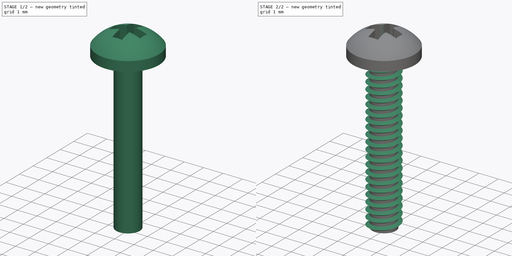
[diagram: build sequence overview — one tinted view per stage of 2, left to right]
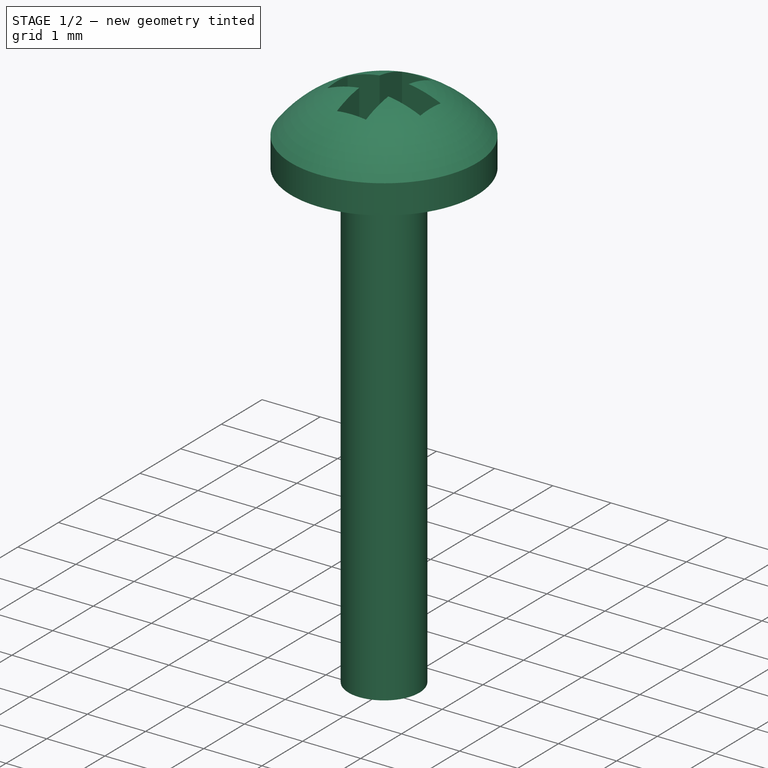
[diagram: stage 1 of 2 — iso view after this stage's code; geometry added in this stage tinted green]
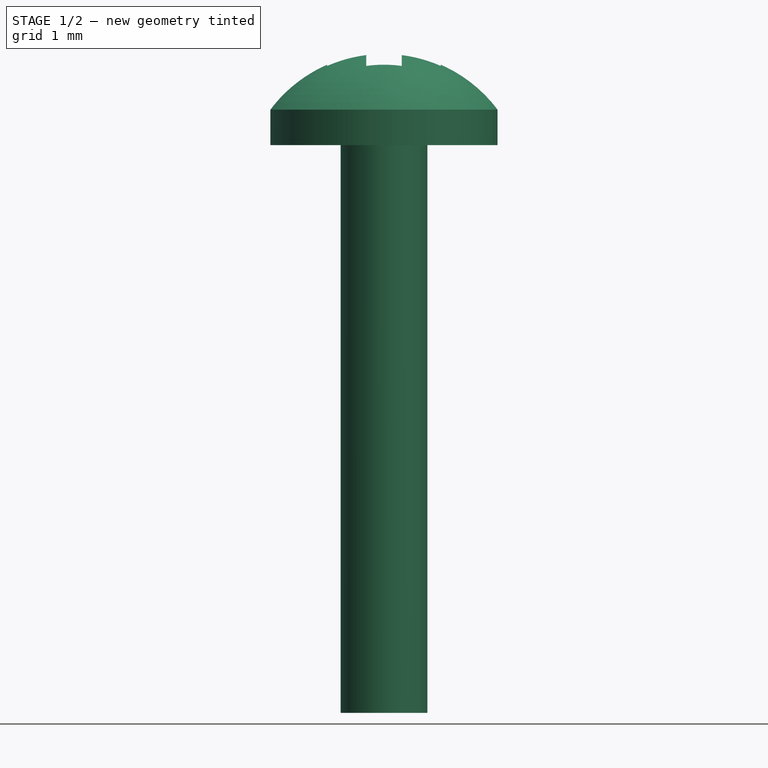
[diagram: stage 1 of 2 — front view after this stage's code; geometry added in this stage tinted green]
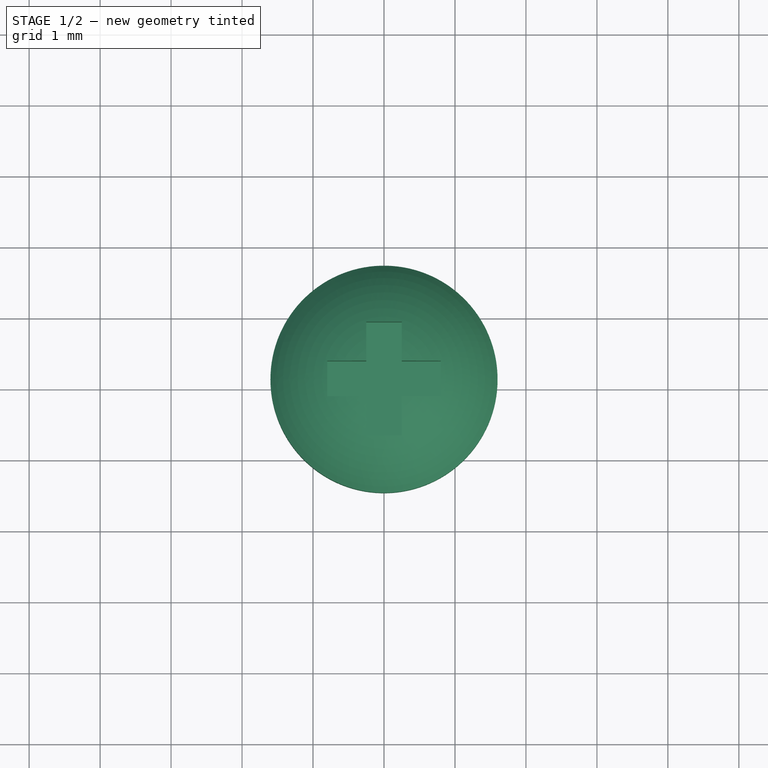
[diagram: stage 1 of 2 — top view after this stage's code; geometry added in this stage tinted green]
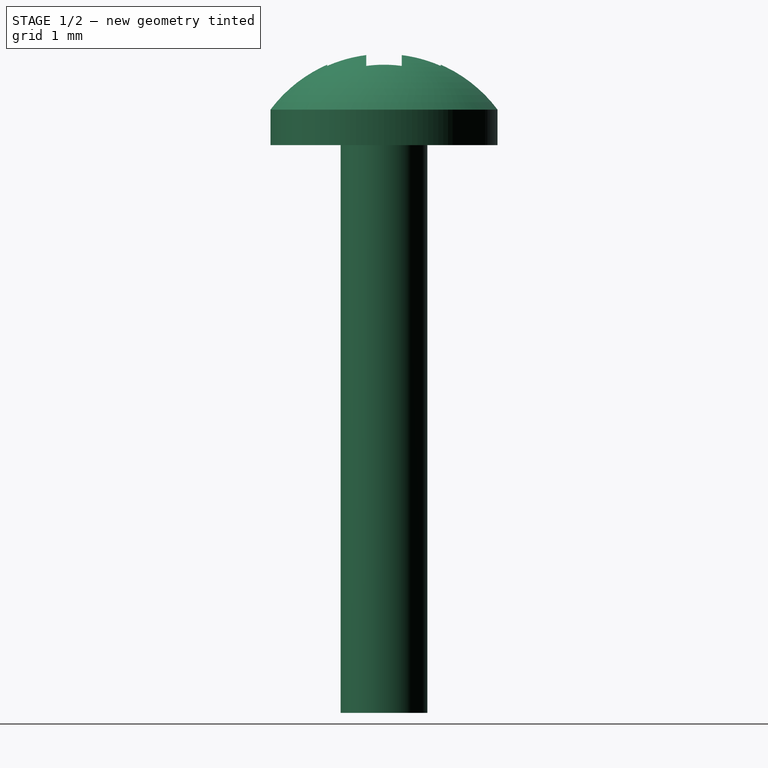
[diagram: stage 1 of 2 — right view after this stage's code; geometry added in this stage tinted green]
FCSTD DOCUMENT  (FreeCAD 1.0R39319 (Git))
Label: SCREW-M1.6x8
License: All rights reserved
LicenseURL: https://en.wikipedia.org/wiki/All_rights_reserved
objects: Sketcher::SketchObject×3, PartDesign::Revolution×1, PartDesign::Pocket×1, PartDesign::Fillet×1, PartDesign::AdditiveHelix×1, PartDesign::CoordinateSystem×1, PartDesign::Body×1
note: 20 computed .brp shape members not serialized (recipe doc carries the construction recipe); baked Part::Feature solids carry a one-line shape summary decoded from their .brp

FEATURE [Sketcher::SketchObject] Sketch  label="Profile"
  ArcFitTolerance = 0
  AttachmentSupport = -> [XZ_Plane]
  FullyConstrained = true
  MakeInternals = false
  MapMode = 5
  Placement = pos=(0,0,0) rot=(1,0,0;1.5708rad)
  sketch-geometry (6):
    g0: LineSegment StartX=0 StartY=1.3 StartZ=0 EndX=0 EndY=-8 EndZ=0
    g1: LineSegment StartX=-1.6 StartY=0 StartZ=0 EndX=-0.6105 EndY=0 EndZ=0
    g2: LineSegment StartX=-0.6105 StartY=0 StartZ=0 EndX=-0.6105 EndY=-8 EndZ=0
    g3: LineSegment StartX=0 StartY=-8 StartZ=0 EndX=-0.6105 EndY=-8 EndZ=0
    g4: LineSegment StartX=-1.6 StartY=0 StartZ=0 EndX=-1.6 EndY=0.5 EndZ=0
    g5: ArcOfCircle CenterX=0 CenterY=-0.7 CenterZ=0 NormalX=0 NormalY=0 NormalZ=1 AngleXU=0 Radius=2 StartAngle=1.5708 EndAngle=2.49809
  constraints (19):
    c: PointOnObject(g0,g-2)
    c: Horizontal(g1)
    c: Coincident(g2,g1)
    c: Vertical(g2)
    c: Coincident(g3,g0)
    c: Horizontal(g3)
    c: Coincident(g2,g3)
    c: DistanceX(g3,g3) = 0.6105
    c: Distance(g2) = 8  'L'
    c: DistanceY(g1,g0) = 1.3
    c: Distance(g1,g0) = 1.6
    c: Coincident(g4,g1)
    c: Vertical(g4)
    c: PointOnObject(g5,g0)
    c: Coincident(g5,g0)
    c: Coincident(g5,g4)
    c: DistanceY(g4,g4) = 0.5
    c: PointOnObject(g0,g-2)
    c: PointOnObject(g1,g-1)
FEATURE [PartDesign::Revolution] Revolution
  Angle = 360
  Angle2 = 60
  Axis = (0,2e-16,1)
  Base = (0,0,0)
  Placement = pos=(0,0,0) rot=(1,0,0;1.5708rad)
  Profile = -> Sketch
  ReferenceAxis = -> Sketch [V_Axis]
  Suppressed = false
  Type = 0
FEATURE [Sketcher::SketchObject] Sketch001
  ArcFitTolerance = 0
  AttachmentSupport = -> [XZ_Plane]
  ExternalGeometry = -> [Revolution]
  FullyConstrained = true
  MakeInternals = false
  MapMode = 5
  Placement = pos=(0,0,0) rot=(1,0,0;1.5708rad)
  sketch-geometry (9):
    g0: LineSegment StartX=-0.6105 StartY=-8 StartZ=0 EndX=-0.7905 EndY=-7.89608 EndZ=0
    g1: LineSegment StartX=-0.7905 StartY=-7.89608 StartZ=0 EndX=-0.6105 EndY=-7.79215 EndZ=0
    g2: LineSegment [constr] StartX=-0.6105 StartY=-7.79215 StartZ=0 EndX=0 EndY=-7.79215 EndZ=0
    g3: LineSegment [constr] StartX=0 StartY=-7.79215 StartZ=0 EndX=0 EndY=-8 EndZ=0
    g4: LineSegment [constr] StartX=-0.6105 StartY=-8 StartZ=0 EndX=0 EndY=-8 EndZ=0
    g5: LineSegment [constr] StartX=-0.6105 StartY=-7.79215 StartZ=0 EndX=-0.6105 EndY=-8 EndZ=0
    g6: LineSegment StartX=-0.6105 StartY=-7.79215 StartZ=0 EndX=-0.5605 EndY=-7.79215 EndZ=0
    g7: LineSegment StartX=-0.5605 StartY=-7.79215 StartZ=0 EndX=-0.5605 EndY=-8 EndZ=0
    g8: LineSegment StartX=-0.5605 StartY=-8 StartZ=0 EndX=-0.6105 EndY=-8 EndZ=0
  constraints (23):
    c: Angle(g0,g1) = 1.0472
    c: Equal(g1,g0)
    c: Coincident(g0,g1)
    c: Coincident(g2,g1)
    c: Horizontal(g2)
    c: Coincident(g3,g2)
    c: Coincident(g0,g-3)
    c: Vertical(g1,g0)
    c: Vertical(g3)
    c: DistanceX(g0,g2) = 0.7905
    c: Symmetric(g0,g-3,g3)
    c: Coincident(g4,g0)
    c: Coincident(g4,g3)
    c: Coincident(g5,g1)
    c: Coincident(g5,g0)
    c: Coincident(g6,g1)
    c: PointOnObject(g6,g2)
    c: Coincident(g7,g6)
    c: PointOnObject(g7,g4)
    c: Vertical(g7)
    c: Coincident(g8,g7)
    c: Coincident(g8,g0)
    c: DistanceX(g6,g6) = 0.05
FEATURE [Sketcher::SketchObject] Sketch002
  ArcFitTolerance = 0
  FullyConstrained = true
  MakeInternals = false
  MapMode = 5
  Placement = pos=(-1e-16,2.1e-15,0.5) rot=(0.707107,0.707107,0;3.14159rad)
  sketch-geometry (14):
    g0: LineSegment StartX=-0.25 StartY=-0.8 StartZ=0 EndX=-0.25 EndY=-0.25 EndZ=0
    g1: LineSegment StartX=-0.25 StartY=0.8 StartZ=0 EndX=0.25 EndY=0.8 EndZ=0
    g2: LineSegment StartX=0.25 StartY=0.8 StartZ=0 EndX=0.25 EndY=0.25 EndZ=0
    g3: LineSegment StartX=0.25 StartY=-0.8 StartZ=0 EndX=-0.25 EndY=-0.8 EndZ=0
    g4: GeomPoint [constr] X=0 Y=0 Z=0
    g5: LineSegment StartX=-0.8 StartY=0.25 StartZ=0 EndX=-0.8 EndY=-0.25 EndZ=0
    g6: LineSegment StartX=-0.8 StartY=-0.25 StartZ=0 EndX=-0.25 EndY=-0.25 EndZ=0
    g7: LineSegment StartX=0.8 StartY=-0.25 StartZ=0 EndX=0.8 EndY=0.25 EndZ=0
    g8: LineSegment StartX=0.8 StartY=0.25 StartZ=0 EndX=0.25 EndY=0.25 EndZ=0
    g9: GeomPoint [constr] X=0 Y=0 Z=0
    g10: LineSegment StartX=-0.25 StartY=0.25 StartZ=0 EndX=-0.25 EndY=0.8 EndZ=0
    g11: LineSegment StartX=0.25 StartY=-0.25 StartZ=0 EndX=0.8 EndY=-0.25 EndZ=0
    g12: LineSegment StartX=-0.25 StartY=0.25 StartZ=0 EndX=-0.8 EndY=0.25 EndZ=0
    g13: LineSegment StartX=0.25 StartY=-0.25 StartZ=0 EndX=0.25 EndY=-0.8 EndZ=0
  constraints (36):
    c: Coincident(g10,g1)
    c: Coincident(g1,g2)
    c: Coincident(g13,g3)
    c: Coincident(g3,g0)
    c: Horizontal(g1)
    c: Horizontal(g3)
    c: Vertical(g0)
    c: Vertical(g2)
    c: Symmetric(g1,g0,g4)
    c: Coincident(g4,g-1)
    c: Coincident(g5,g6)
    c: Coincident(g11,g7)
    c: Coincident(g7,g8)
    c: Coincident(g12,g5)
    c: Horizontal(g6)
    c: Horizontal(g8)
    c: Vertical(g5)
    c: Vertical(g7)
    c: Symmetric(g11,g5,g9)
    c: Coincident(g9,g4)
    c: Distance(g1) = 0.5
    c: Distance(g7) = 0.5
    c: Coincident(g6,g0)
    c: Vertical(g10)
    c: Vertical(g10,g0)
    c: Coincident(g12,g10)
    c: Coincident(g2,g8)
    c: Coincident(g13,g11)
    c: Horizontal(g12)
    c: DistanceX(g5,g7) = 1.6
    c: Vertical(g13)
    c: DistanceY(g3,g1) = 1.6
    c: Horizontal(g11)
    c: Horizontal(g2,g10)
    c: Horizontal(g11,g0)
    c: Vertical(g2,g11)
FEATURE [PartDesign::Pocket] Pocket
  BaseFeature = -> Revolution
  Direction = (-1e-16,1e-16,1)
  Length = 1
  Length2 = 5
  Placement = pos=(0,0,0) rot=(1,0,0;1.5708rad)
  Profile = -> Sketch002
  ReferenceAxis = -> Sketch002 [N_Axis]
  Refine = true
  Suppressed = false
  Type = 1
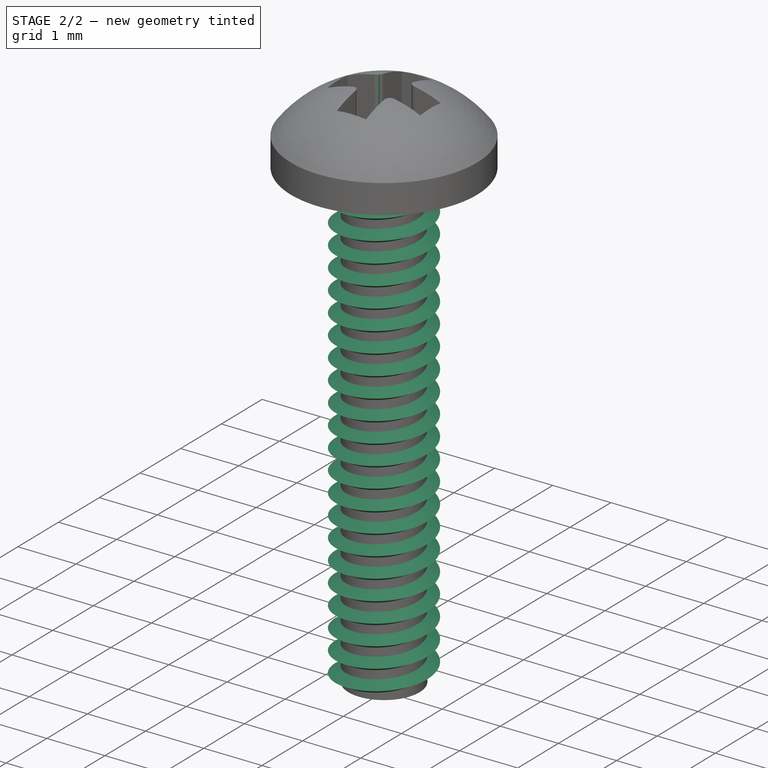
[diagram: stage 2 of 2 — iso view after this stage's code; geometry added in this stage tinted green]
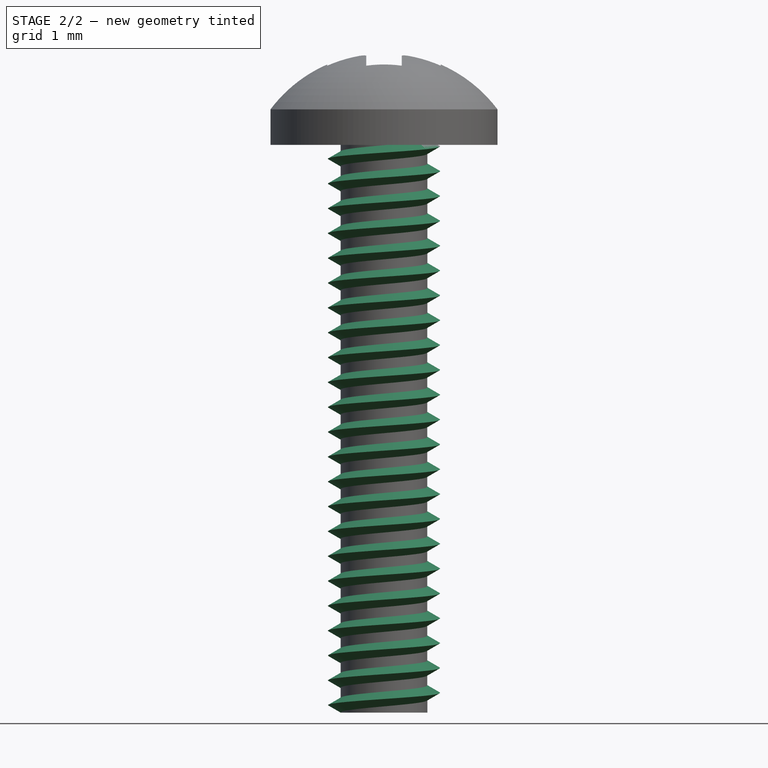
[diagram: stage 2 of 2 — front view after this stage's code; geometry added in this stage tinted green]
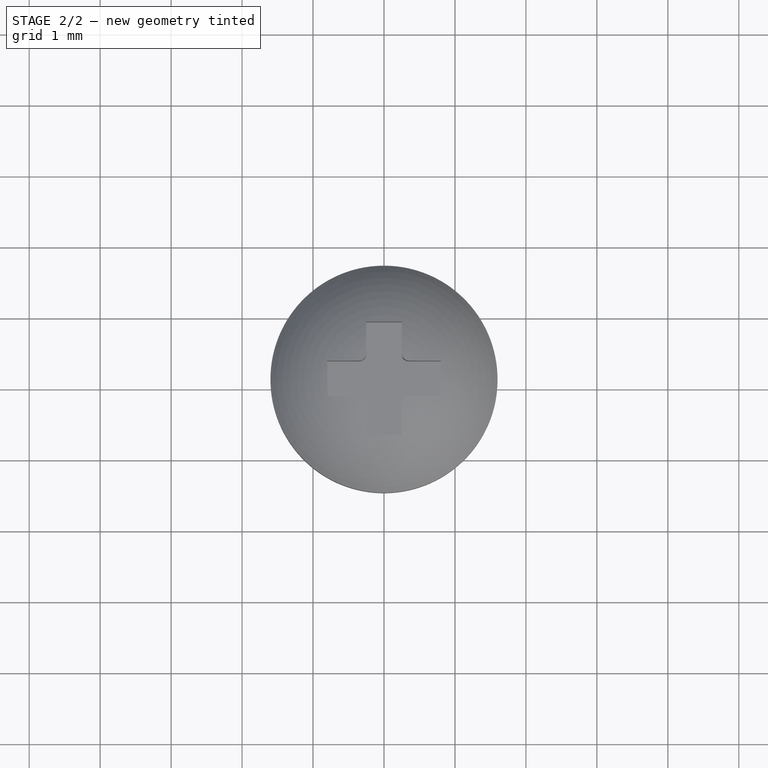
[diagram: stage 2 of 2 — top view after this stage's code; geometry added in this stage tinted green]
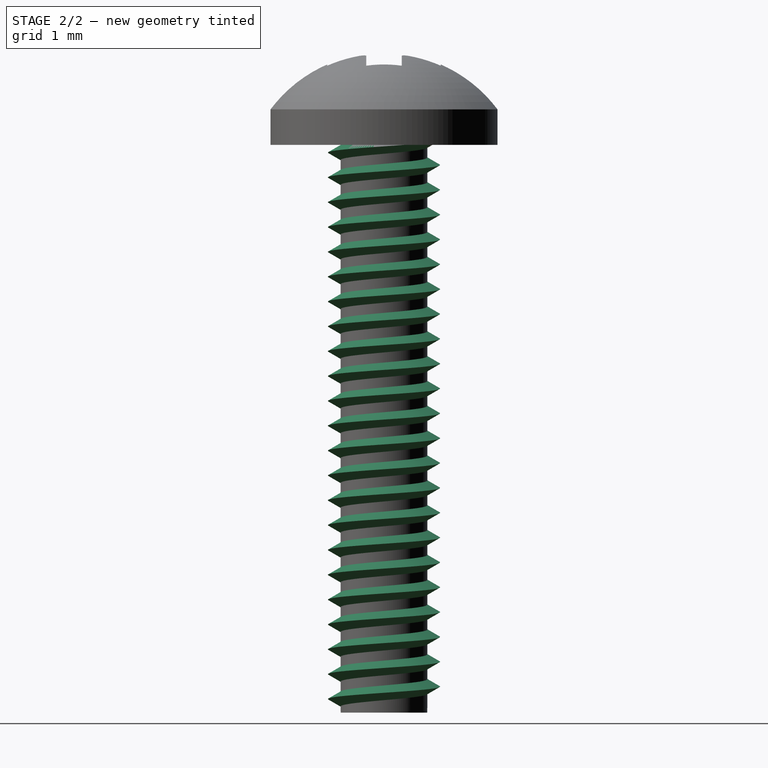
[diagram: stage 2 of 2 — right view after this stage's code; geometry added in this stage tinted green]
FEATURE [PartDesign::Fillet] Fillet
  Base = -> Pocket [Edge43,Edge37,Edge25,Edge31]
  BaseFeature = -> Pocket
  Placement = pos=(0,0,0) rot=(1,0,0;1.5708rad)
  Radius = 0.1
  Refine = true
  SupportTransform = false
  Suppressed = false
  UseAllEdges = false
FEATURE [PartDesign::AdditiveHelix] AdditiveHelix
  Angle = 0
  Axis = (0,2e-16,1)
  Base = (0,0,0)
  BaseFeature = -> Fillet
  Growth = 0
  HasBeenEdited = true
  Height = 8
  LeftHanded = false
  Mode = 0
  Outside = false
  Pitch = 0.35
  Placement = pos=(0,0,0) rot=(1,0,0;1.5708rad)
  Profile = -> Sketch001
  ReferenceAxis = -> Sketch001 [V_Axis]
  Suppressed = false
  Tolerance = 0.1
  Turns = 22.8571
  expr: Height = <<Profile>>.Constraints.L
FEATURE [PartDesign::CoordinateSystem] LCS_1
  AttacherType = Attacher::AttachEngine3D
FEATURE [PartDesign::Body] Body  label="SCREW-M1.6x8"
  AllowCompound = false
  Group = -> [Sketch,Revolution,Pocket,Fillet,Sketch001,AdditiveHelix,Sketch002,LCS_1]
  Origin = -> Origin
  Tip = -> AdditiveHelix
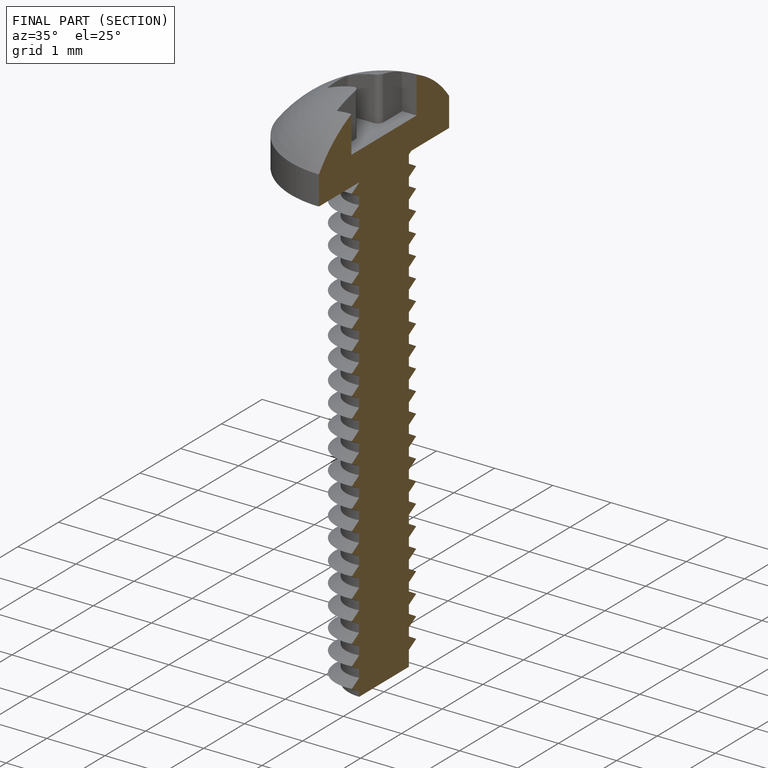
[diagram: finished part — half-section view (interior)]
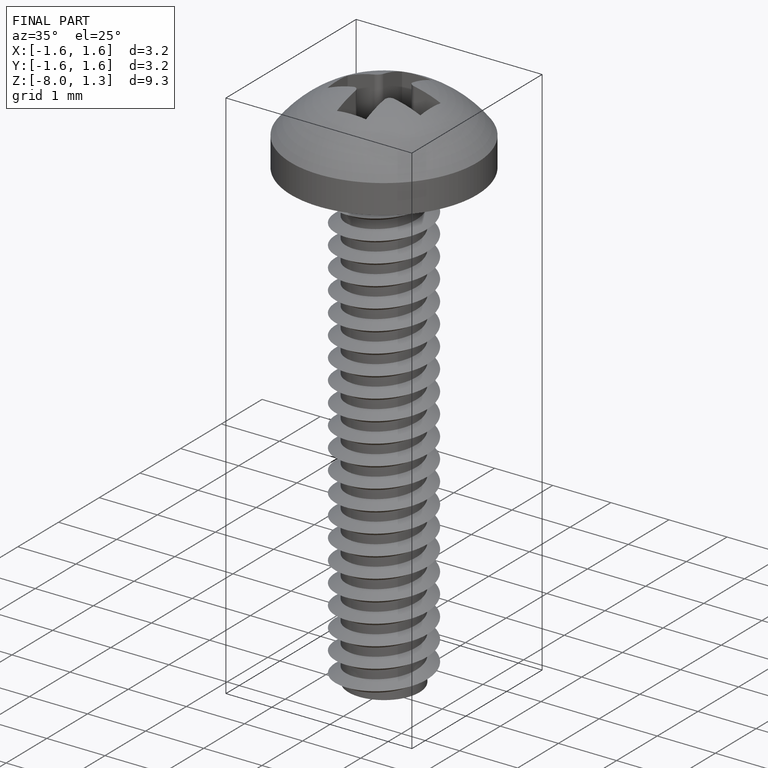
[diagram: finished part — iso view with bounding-box wireframe]
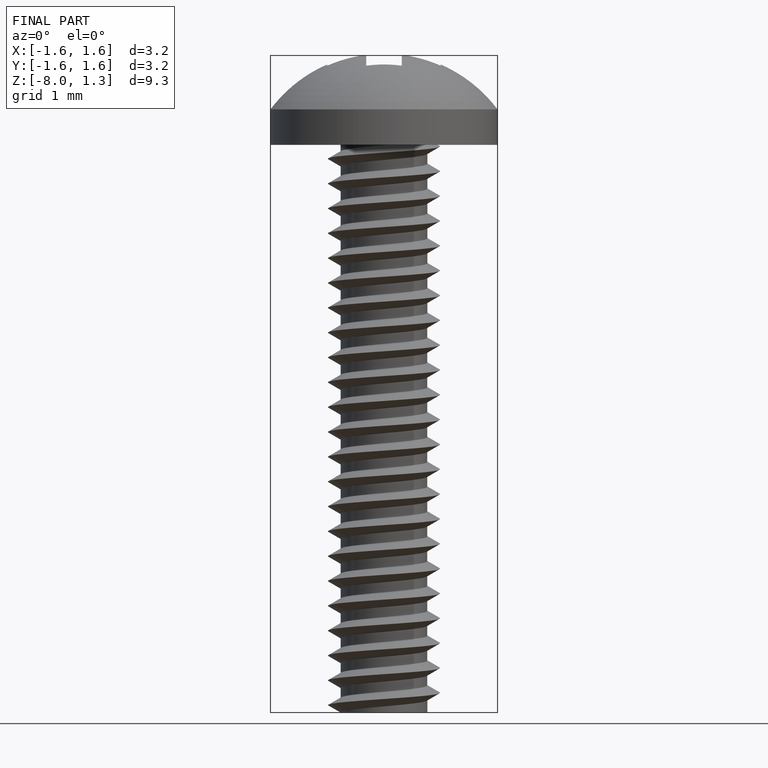
[diagram: finished part — front view with bounding-box wireframe]
